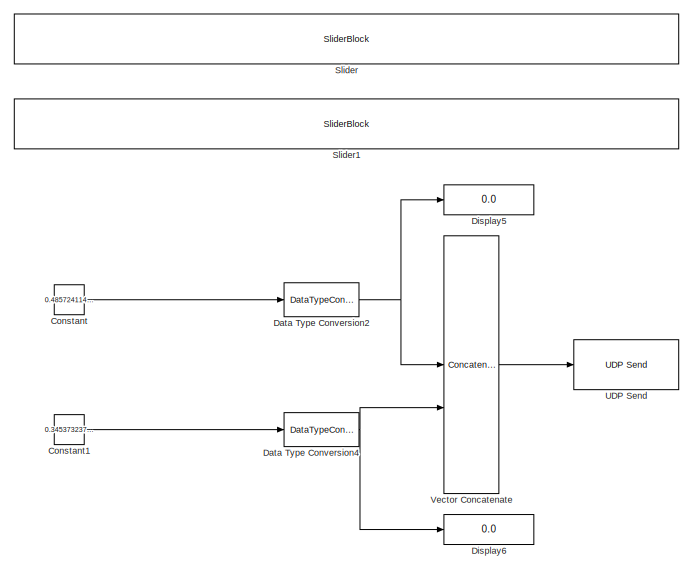
[diagram: root canvas - part 1/2, left side, full height]
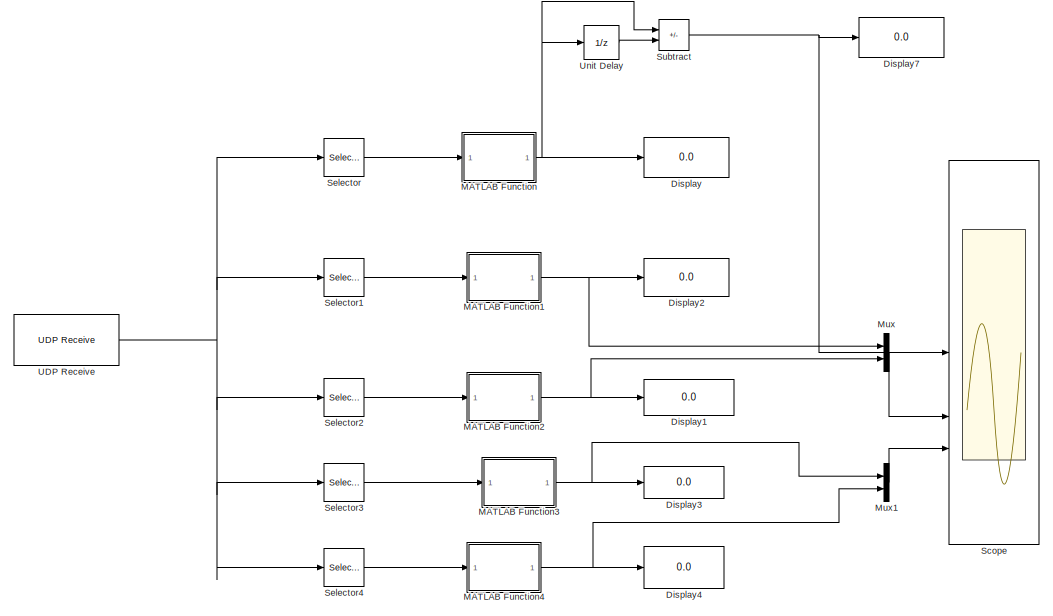
[diagram: root canvas - part 2/2, right side, full height]
MODEL slx_b6365c450a2c
KIND model
CONFIG AbsTol = auto
CONFIG EnableMultiTasking = off
CONFIG FixedStep = 0.001
CONFIG MaxStep = auto
CONFIG MinStep = auto
CONFIG RelTol = 1e-3
CONFIG SampleTimeConstraint = Unconstrained
CONFIG SolverName = FixedStepDiscrete
CONFIG StartTime = 0.0
CONFIG StopTime = inf
BLOCK [Constant] Constant
  Value = 0.4857241142070863
BLOCK [Constant] Constant1
  Value = 0.3453732370141039
BLOCK [DataTypeConversion] Data Type Conversion2
  OutDataTypeStr = single
  RndMeth = Floor
  SaturateOnIntegerOverflow = off
BLOCK [DataTypeConversion] Data Type Conversion4
  OutDataTypeStr = single
  RndMeth = Floor
  SaturateOnIntegerOverflow = off
BLOCK [Display] Display
  Decimation = 1
  Format = long
BLOCK [Display] Display1
  Decimation = 1
BLOCK [Display] Display2
  Decimation = 1
BLOCK [Display] Display3
  Decimation = 1
BLOCK [Display] Display4
  Decimation = 1
BLOCK [Display] Display5
  Decimation = 1
BLOCK [Display] Display6
  Decimation = 1
BLOCK [Display] Display7
  Decimation = 1
  Format = long
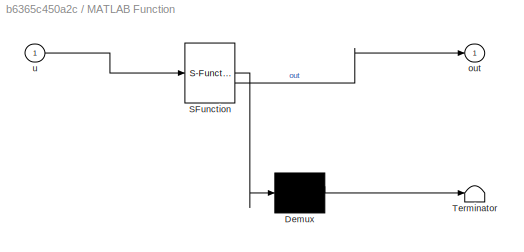
BLOCK [SubSystem] MATLAB Function
  ErrorFcn = Stateflow.Translate.translate
  PermitHierarchicalResolution = ExplicitOnly
  SFBlockType = MATLAB Function
  TreatAsAtomicUnit = on
BLOCK [Demux] MATLAB Function/ Demux 
  Outputs = 1
BLOCK [S-Function] MATLAB Function/ SFunction 
  EnableBusSupport = on
  FunctionName = sf_sfun
  PortCounts = [1 2]
  SFcnIsStateOwnerBlock = off
  SFunctionDeploymentMode = off
  Tag = Stateflow S-Function 2
BLOCK [Terminator] MATLAB Function/ Terminator 
BLOCK [Outport] MATLAB Function/out
BLOCK [Inport] MATLAB Function/u
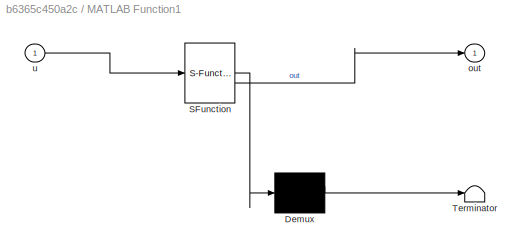
BLOCK [SubSystem] MATLAB Function1
  ErrorFcn = Stateflow.Translate.translate
  PermitHierarchicalResolution = ExplicitOnly
  SFBlockType = MATLAB Function
  TreatAsAtomicUnit = on
BLOCK [Demux] MATLAB Function1/ Demux 
  Outputs = 1
BLOCK [S-Function] MATLAB Function1/ SFunction 
  EnableBusSupport = on
  FunctionName = sf_sfun
  PortCounts = [1 2]
  SFcnIsStateOwnerBlock = off
  SFunctionDeploymentMode = off
  Tag = Stateflow S-Function 1
BLOCK [Terminator] MATLAB Function1/ Terminator 
BLOCK [Outport] MATLAB Function1/out
BLOCK [Inport] MATLAB Function1/u
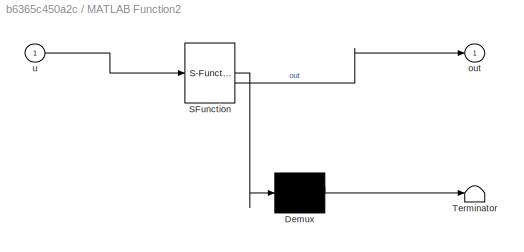
BLOCK [SubSystem] MATLAB Function2
  ErrorFcn = Stateflow.Translate.translate
  PermitHierarchicalResolution = ExplicitOnly
  SFBlockType = MATLAB Function
  TreatAsAtomicUnit = on
BLOCK [Demux] MATLAB Function2/ Demux 
  Outputs = 1
BLOCK [S-Function] MATLAB Function2/ SFunction 
  EnableBusSupport = on
  FunctionName = sf_sfun
  PortCounts = [1 2]
  SFcnIsStateOwnerBlock = off
  SFunctionDeploymentMode = off
  Tag = Stateflow S-Function 3
BLOCK [Terminator] MATLAB Function2/ Terminator 
BLOCK [Outport] MATLAB Function2/out
BLOCK [Inport] MATLAB Function2/u
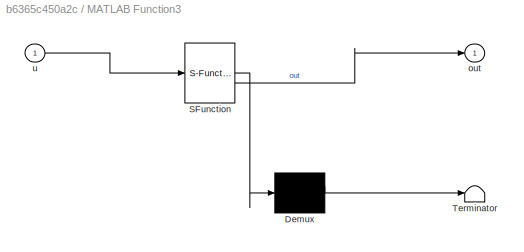
BLOCK [SubSystem] MATLAB Function3
  ErrorFcn = Stateflow.Translate.translate
  PermitHierarchicalResolution = ExplicitOnly
  SFBlockType = MATLAB Function
  TreatAsAtomicUnit = on
BLOCK [Demux] MATLAB Function3/ Demux 
  Outputs = 1
BLOCK [S-Function] MATLAB Function3/ SFunction 
  EnableBusSupport = on
  FunctionName = sf_sfun
  PortCounts = [1 2]
  SFcnIsStateOwnerBlock = off
  SFunctionDeploymentMode = off
  Tag = Stateflow S-Function 4
BLOCK [Terminator] MATLAB Function3/ Terminator 
BLOCK [Outport] MATLAB Function3/out
BLOCK [Inport] MATLAB Function3/u
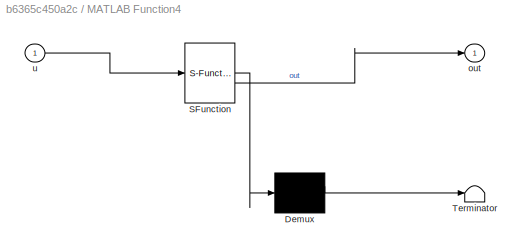
BLOCK [SubSystem] MATLAB Function4
  ErrorFcn = Stateflow.Translate.translate
  PermitHierarchicalResolution = ExplicitOnly
  SFBlockType = MATLAB Function
  TreatAsAtomicUnit = on
BLOCK [Demux] MATLAB Function4/ Demux 
  Outputs = 1
BLOCK [S-Function] MATLAB Function4/ SFunction 
  EnableBusSupport = on
  FunctionName = sf_sfun
  PortCounts = [1 2]
  SFcnIsStateOwnerBlock = off
  SFunctionDeploymentMode = off
  Tag = Stateflow S-Function 5
BLOCK [Terminator] MATLAB Function4/ Terminator 
BLOCK [Outport] MATLAB Function4/out
BLOCK [Inport] MATLAB Function4/u
BLOCK [Mux] Mux
  DisplayOption = bar
  Inputs = 2
BLOCK [Mux] Mux1
  DisplayOption = bar
  Inputs = 2
BLOCK [Scope] Scope
  Floating = off
  NumInputPorts = 3
  ScopeSpecificationString = Simulink.scopes.TimeScopeBlockCfg('CurrentConfiguration', extmgr.ConfigurationSet(extmgr.Configuration('Core','General UI',true),extmgr.Configuration('Core','Source UI',true),extmgr.Configuration('Sources','WiredSimulink',true),extmgr.Configuration('Visuals','Time Domain',true,'SerializedDisplays',{struct('MinYLimReal','0','MaxYLimReal','0.05','YLabelReal','','MinYLimMag','0.00000','MaxYLimMag','3...<+2911ch>
BLOCK [Selector] Selector
  IndexOptions = Index vector (dialog)
  Indices = [1 2 3 4]
  InputPortWidth = 20
  OutputSizes = 1
BLOCK [Selector] Selector1
  IndexOptions = Index vector (dialog)
  Indices = [5 6 7 8]
  InputPortWidth = 20
  OutputSizes = 1
BLOCK [Selector] Selector2
  IndexOptions = Index vector (dialog)
  Indices = [9 10 11 12]
  InputPortWidth = 20
  OutputSizes = 1
BLOCK [Selector] Selector3
  IndexOptions = Index vector (dialog)
  Indices = [13 14 15 16]
  InputPortWidth = 20
  OutputSizes = 1
BLOCK [Selector] Selector4
  IndexOptions = Index vector (dialog)
  Indices = [17 18 19 20]
  InputPortWidth = 20
  OutputSizes = 1
BLOCK [SliderBlock] Slider
  ScaleMax = 1
BLOCK [SliderBlock] Slider1
  ScaleMax = 1
BLOCK [Sum] Subtract
  IconShape = rectangular
  Inputs = +-
BLOCK [Reference] UDP Receive  REF=dspnetwork/UDP Receive
  LibrarySourceBlock = dspsrcs4/UDP Receive
  SourceBlock = dspnetwork/UDP Receive
  SourceType = UDP Receive
BLOCK [Reference] UDP Send  REF=dspnetwork/UDP Send
  LibrarySourceBlock = dspsnks4/UDP Send
  SourceBlock = dspnetwork/UDP Send
  SourceType = UDP Send
BLOCK [UnitDelay] Unit Delay
  HasFrameUpgradeWarning = on
  SampleTime = -1
BLOCK [Concatenate] Vector Concatenate
  Mode = Multidimensional array
LINE Constant1:1 -> Data Type Conversion4:1
LINE Constant:1 -> Data Type Conversion2:1
NET Data Type Conversion2:1 -> Display5:1, Vector Concatenate:1
NET Data Type Conversion4:1 -> Display6:1, Vector Concatenate:2
NET MATLAB Function1:1 -> Display2:1, Mux:1
NET MATLAB Function2:1 -> Display1:1, Mux:2
NET MATLAB Function3:1 -> Display3:1, Mux1:1
NET MATLAB Function4:1 -> Display4:1, Mux1:2
NET MATLAB Function:1 -> Display:1, Subtract:1, Unit Delay:1
LINE Mux1:1 -> Scope:3
LINE Mux:1 -> Scope:2
LINE Selector1:1 -> MATLAB Function1:1
LINE Selector2:1 -> MATLAB Function2:1
LINE Selector3:1 -> MATLAB Function3:1
LINE Selector4:1 -> MATLAB Function4:1
LINE Selector:1 -> MATLAB Function:1
NET Subtract:1 -> Display7:1, Scope:1
NET UDP Receive:1 -> Selector1:1, Selector2:1, Selector3:1, Selector4:1, Selector:1
LINE Unit Delay:1 -> Subtract:2
LINE Vector Concatenate:1 -> UDP Send:1
note: NET lines group one-source signal fan-out (src -> all destinations, sorted); 1:1 wires keep LINE
CHART MATLAB Function states=1 transitions=1
  STATE_LABEL 'eML_blk_kernel()'
  STATE_LABEL "SCRIPT:\nfunction out = fcn(u)\n%#codegen\n% u: [4x1] uint8\n% out: single scalar\n\ncoder.varsize('out', [1 1], [0 0]); % 明确输出大小\nout = typecast(uint8(u), 'single'); % 小端字节序转换\nend\n"
CHART MATLAB Function2 states=1 transitions=1
  STATE_LABEL 'eML_blk_kernel()'
  STATE_LABEL "SCRIPT:\nfunction out = fcn(u)\n%#codegen\n% u: [4x1] uint8\n% out: single scalar\n\ncoder.varsize('out', [1 1], [0 0]); % 明确输出大小\nout = typecast(uint8(u), 'single'); % 小端字节序转换\nend\n"
CHART MATLAB Function3 states=1 transitions=1
  STATE_LABEL 'eML_blk_kernel()'
  STATE_LABEL "SCRIPT:\nfunction out = fcn(u)\n%#codegen\n% u: [4x1] uint8\n% out: single scalar\n\ncoder.varsize('out', [1 1], [0 0]); % 明确输出大小\nout = typecast(uint8(u), 'single'); % 小端字节序转换\nend\n"
CHART MATLAB Function4 states=1 transitions=1
  STATE_LABEL 'eML_blk_kernel()'
  STATE_LABEL "SCRIPT:\nfunction out = fcn(u)\n%#codegen\n% u: [4x1] uint8\n% out: single scalar\n\ncoder.varsize('out', [1 1], [0 0]); % 明确输出大小\nout = typecast(uint8(u), 'single'); % 小端字节序转换\nend\n"
CHART MATLAB Function1 states=1 transitions=1
  STATE_LABEL 'eML_blk_kernel()'
  STATE_LABEL "SCRIPT:\nfunction out = fcn(u)\n%#codegen\n% u: [4x1] uint8\n% out: single scalar\n\ncoder.varsize('out', [1 1], [0 0]); % 明确输出大小\nout = typecast(uint8(u), 'single'); % 小端字节序转换\nend\n"
CHART  states=0 transitions=0
CHART  states=0 transitions=0
CHART  states=0 transitions=0
CHART  states=0 transitions=0
CHART  states=0 transitions=0
